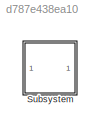
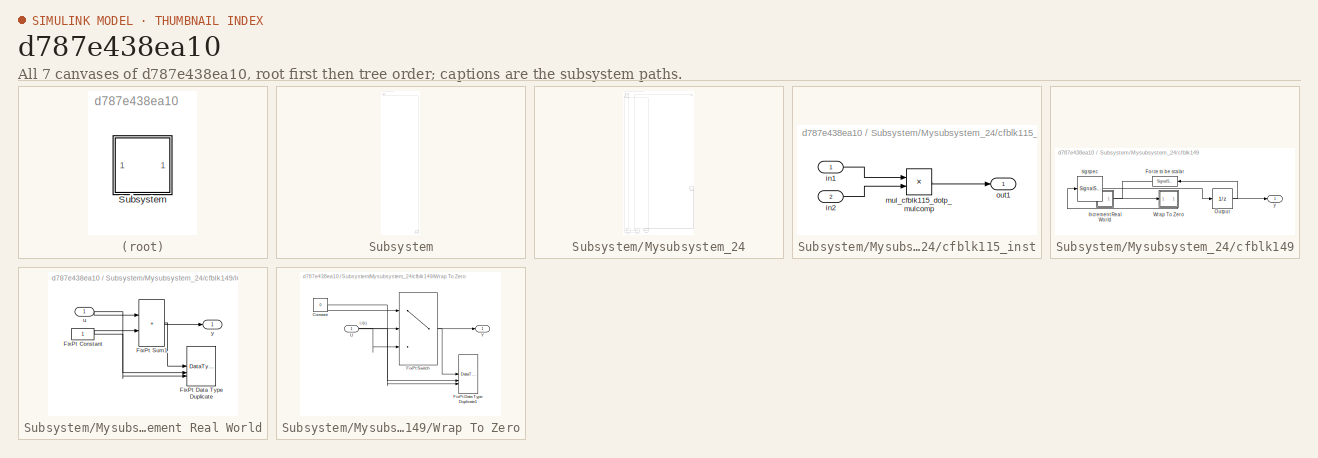
[diagram: thumbnail index - all 7 canvases of the model, root first then tree order]
MODEL slx_d787e438ea10
KIND model
CONFIG AbsTol = auto
CONFIG EnableMultiTasking = off
CONFIG FixedStep = auto
CONFIG MaxStep = auto
CONFIG MinStep = auto
CONFIG RelTol = 1e-3
CONFIG SampleTimeConstraint = Unconstrained
CONFIG SolverName = VariableStepAuto
CONFIG StartTime = 0.0
CONFIG StopTime = 10.0
BLOCK [SubSystem] Subsystem
BLOCK [Outport] Subsystem/Hdl_out
  OutDataTypeStr = uint8
  SampleTime = 1
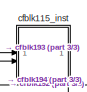
[diagram: Subsystem/Mysubsystem_24 - part 1/3, top left region]
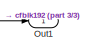
[diagram: Subsystem/Mysubsystem_24 - part 2/3, top right region]
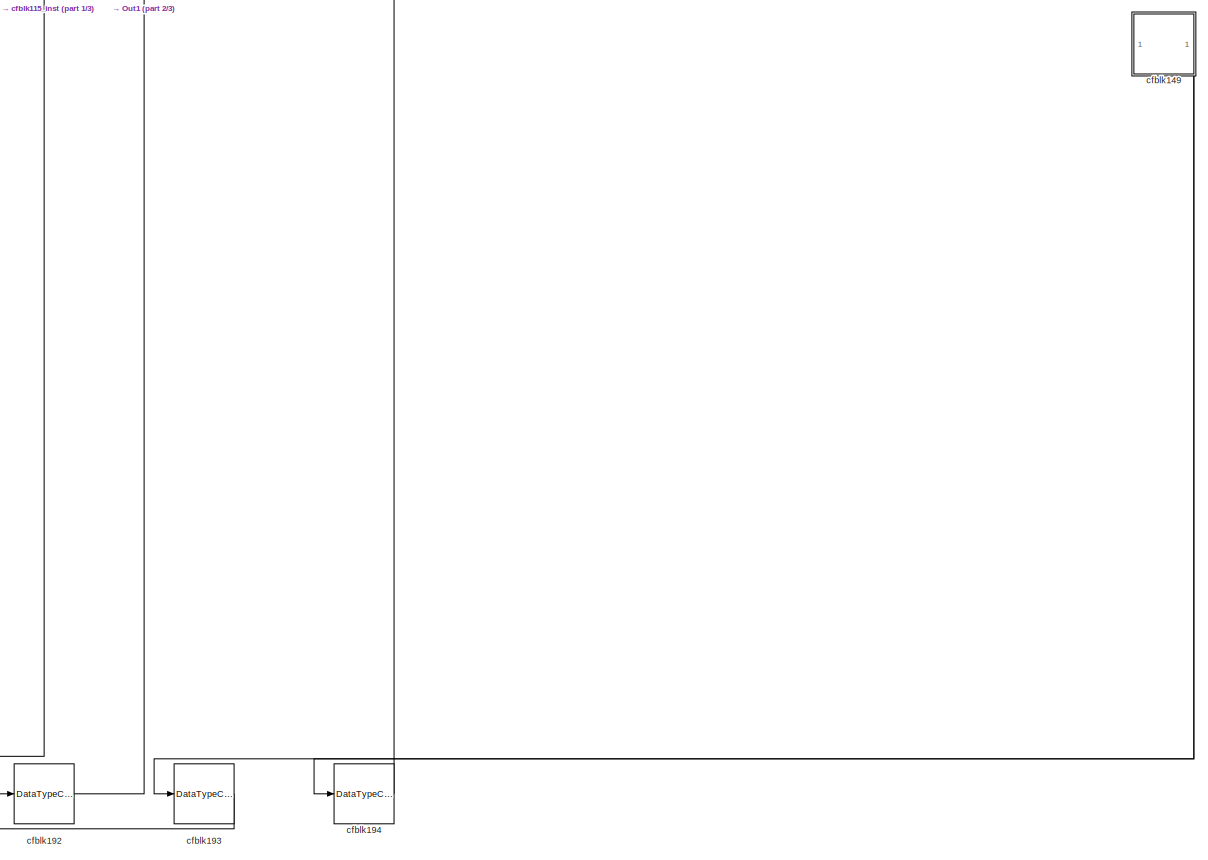
[diagram: Subsystem/Mysubsystem_24 - part 3/3, full width, bottom band]
BLOCK [SubSystem] Subsystem/Mysubsystem_24
BLOCK [Outport] Subsystem/Mysubsystem_24/Out1
  SampleTime = 1
BLOCK [SubSystem] Subsystem/Mysubsystem_24/cfblk115_inst
BLOCK [Inport] Subsystem/Mysubsystem_24/cfblk115_inst/in1
  OutDataTypeStr = uint8
  SampleTime = 1
BLOCK [Inport] Subsystem/Mysubsystem_24/cfblk115_inst/in2
  OutDataTypeStr = uint8
  Port = 2
  SampleTime = 1
BLOCK [Product] Subsystem/Mysubsystem_24/cfblk115_inst/mul_cfblk115_dotp_mulcomp
  Inputs = **
  OutDataTypeStr = uint16
  SampleTime = 1
BLOCK [Outport] Subsystem/Mysubsystem_24/cfblk115_inst/out1
  OutDataTypeStr = uint16
  SampleTime = 1
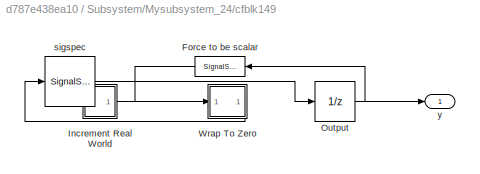
BLOCK [SubSystem] Subsystem/Mysubsystem_24/cfblk149
BLOCK [SignalSpecification] Subsystem/Mysubsystem_24/cfblk149/Force to be scalar
  Dimensions = 1
  DisableCoverage = on
BLOCK [SubSystem] Subsystem/Mysubsystem_24/cfblk149/Increment Real World
BLOCK [Constant] Subsystem/Mysubsystem_24/cfblk149/Increment Real World/FixPt Constant
  DisableCoverage = on
  OutDataTypeStr = Inherit: Inherit via back propagation
  SampleTime = -1
BLOCK [DataTypeDuplicate] Subsystem/Mysubsystem_24/cfblk149/Increment Real World/FixPt Data Type Duplicate
  DisableCoverage = on
  NumInputPorts = 3
BLOCK [Sum] Subsystem/Mysubsystem_24/cfblk149/Increment Real World/FixPt Sum1
  IconShape = rectangular
  InputSameDT = on
  LockScale = on
  OutDataTypeStr = Inherit: Inherit via back propagation
BLOCK [Inport] Subsystem/Mysubsystem_24/cfblk149/Increment Real World/u
  OutDataTypeStr = uint8
  SampleTime = 1
BLOCK [Outport] Subsystem/Mysubsystem_24/cfblk149/Increment Real World/y
  SampleTime = 1
BLOCK [UnitDelay] Subsystem/Mysubsystem_24/cfblk149/Output
  HasFrameUpgradeWarning = on
  InitialCondition = 0.0
  SampleTime = tsamp
BLOCK [SubSystem] Subsystem/Mysubsystem_24/cfblk149/Wrap To Zero
BLOCK [Constant] Subsystem/Mysubsystem_24/cfblk149/Wrap To Zero/Constant
  DisableCoverage = on
  OutDataTypeStr = Inherit: Inherit via back propagation
  SampleTime = -1
  Value = 0
BLOCK [DataTypeDuplicate] Subsystem/Mysubsystem_24/cfblk149/Wrap To Zero/FixPt Data Type Duplicate1
  DisableCoverage = on
  NumInputPorts = 3
BLOCK [Switch] Subsystem/Mysubsystem_24/cfblk149/Wrap To Zero/FixPt Switch
  Criteria = u2 > Threshold
  InputSameDT = off
  OutDataTypeStr = Inherit: Inherit via back propagation
  SaturateOnIntegerOverflow = off
  Threshold = Threshold
  ZeroCross = off
BLOCK [Inport] Subsystem/Mysubsystem_24/cfblk149/Wrap To Zero/U
  OutDataTypeStr = uint8
  SampleTime = 1
BLOCK [Outport] Subsystem/Mysubsystem_24/cfblk149/Wrap To Zero/Y
  SampleTime = 1
BLOCK [SignalSpecification] Subsystem/Mysubsystem_24/cfblk149/sigspec
  Dimensions = 1
  OutDataTypeStr = uint8
BLOCK [Outport] Subsystem/Mysubsystem_24/cfblk149/y
  SampleTime = 1
BLOCK [DataTypeConversion] Subsystem/Mysubsystem_24/cfblk192
  OutDataTypeStr = uint8
  RndMeth = Floor
  SaturateOnIntegerOverflow = off
BLOCK [DataTypeConversion] Subsystem/Mysubsystem_24/cfblk193
  OutDataTypeStr = uint8
  RndMeth = Floor
  SaturateOnIntegerOverflow = off
BLOCK [DataTypeConversion] Subsystem/Mysubsystem_24/cfblk194
  OutDataTypeStr = uint8
  RndMeth = Floor
  SaturateOnIntegerOverflow = off
ANNOTATION Subsystem/Mysubsystem_24/cfblk149/Wrap To Zero: U(k)
LINE Subsystem/Mysubsystem_24/cfblk115_inst/in1:1 -> Subsystem/Mysubsystem_24/cfblk115_inst/mul_cfblk115_dotp_mulcomp:1
LINE Subsystem/Mysubsystem_24/cfblk115_inst/in2:1 -> Subsystem/Mysubsystem_24/cfblk115_inst/mul_cfblk115_dotp_mulcomp:2
LINE Subsystem/Mysubsystem_24/cfblk115_inst/mul_cfblk115_dotp_mulcomp:1 -> Subsystem/Mysubsystem_24/cfblk115_inst/out1:1
LINE Subsystem/Mysubsystem_24/cfblk115_inst:1 -> Subsystem/Mysubsystem_24/cfblk192:1
NET Subsystem/Mysubsystem_24/cfblk149:1 -> Subsystem/Mysubsystem_24/cfblk193:1, Subsystem/Mysubsystem_24/cfblk194:1
LINE Subsystem/Mysubsystem_24/cfblk192:1 -> Subsystem/Mysubsystem_24/Out1:1
LINE Subsystem/Mysubsystem_24/cfblk193:1 -> Subsystem/Mysubsystem_24/cfblk115_inst:1
LINE Subsystem/Mysubsystem_24/cfblk194:1 -> Subsystem/Mysubsystem_24/cfblk115_inst:2
LINE Subsystem/Mysubsystem_24:1 -> Subsystem/Hdl_out:1
note: NET lines group one-source signal fan-out (src -> all destinations, sorted); 1:1 wires keep LINE
